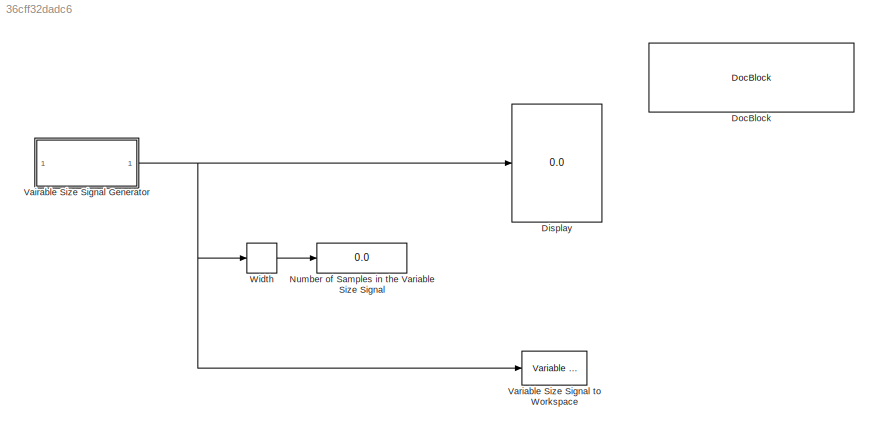
MODEL slx_36cff32dadc6
KIND model
CONFIG AbsTol = auto
CONFIG EnableMultiTasking = off
CONFIG FixedStep = auto
CONFIG MaxStep = auto
CONFIG MinStep = auto
CONFIG RelTol = 1e-3
CONFIG SampleTimeConstraint = Unconstrained
CONFIG SolverName = VariableStepAuto
CONFIG StartTime = 0.0
CONFIG StopTime = 20
BLOCK [Display] Display
  Decimation = 1
BLOCK [Reference] DocBlock  REF=simulink/Model-Wide
Utilities/DocBlock
  SourceBlock = simulink/Model-Wide\nUtilities/DocBlock
  SourceType = DocBlock
  UserDataPersistent = on
BLOCK [Display] Number of Samples in the Variable Size Signal
  Decimation = 1
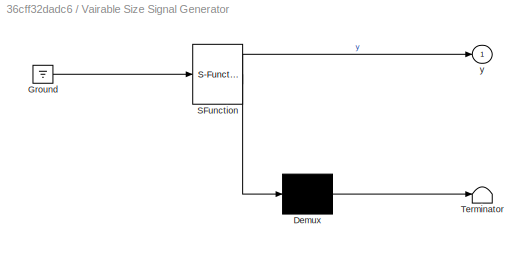
BLOCK [SubSystem] Vairable Size Signal Generator
  ErrorFcn = Stateflow.Translate.translate
  PermitHierarchicalResolution = ExplicitOnly
  SFBlockType = MATLAB Function
  SystemSampleTime = 1
  TreatAsAtomicUnit = on
BLOCK [Demux] Vairable Size Signal Generator/ Demux 
  Outputs = 1
BLOCK [Ground] Vairable Size Signal Generator/ Ground 
BLOCK [S-Function] Vairable Size Signal Generator/ SFunction 
  EnableBusSupport = off
  FunctionName = sf_sfun
  Parameters = maxSizeOfVariableSizeSignal,outType
  PortCounts = [1 2]
  SFcnIsStateOwnerBlock = off
  SFunctionDeploymentMode = off
  Tag = Stateflow S-Function 2
BLOCK [Terminator] Vairable Size Signal Generator/ Terminator 
BLOCK [Outport] Vairable Size Signal Generator/y
  VectorParamsAs1DForOutWhenUnconnected = off
BLOCK [Reference] Variable Size Signal to Workspace  REF=aieUtilities/Variable Size Signal to Workspace
  SourceBlock = aieUtilities/Variable Size Signal to Workspace
  SourceType = Variable Size Signal to Workspace
BLOCK [Width] Width
NET Vairable Size Signal Generator:1 -> Display:1, Variable Size Signal to Workspace:1, Width:1
LINE Width:1 -> Number of Samples in the Variable Size Signal:1
note: NET lines group one-source signal fan-out (src -> all destinations, sorted); 1:1 wires keep LINE
CHART Vairable Size Signal 
Generator states=1 transitions=1
  STATE_LABEL 'eML_blk_kernel()'
  STATE_LABEL "SCRIPT:\nfunction y = fcn(maxSizeOfVariableSizeSignal,outType)\n%#codegen\n\npersistent out;\n\nif isempty(out)\n    out = 0;\n    rng(5)\nend\n\nif outType == 1\n    numOfSamples = randi([0 maxSizeOfVariableSizeSignal],1,1);\nelse\n    numOfSamples = maxSizeOfVariableSizeSignal;\nend\n\ny = (out:out+numOfSamples-1)';\n\nout = out + numOfSamples;"
CHART  states=0 transitions=0
